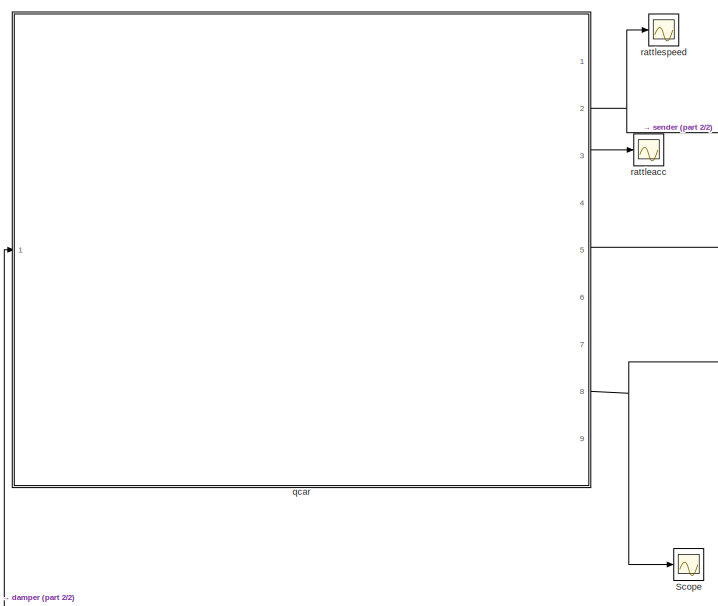
[diagram: root canvas - part 1/2, middle left region]
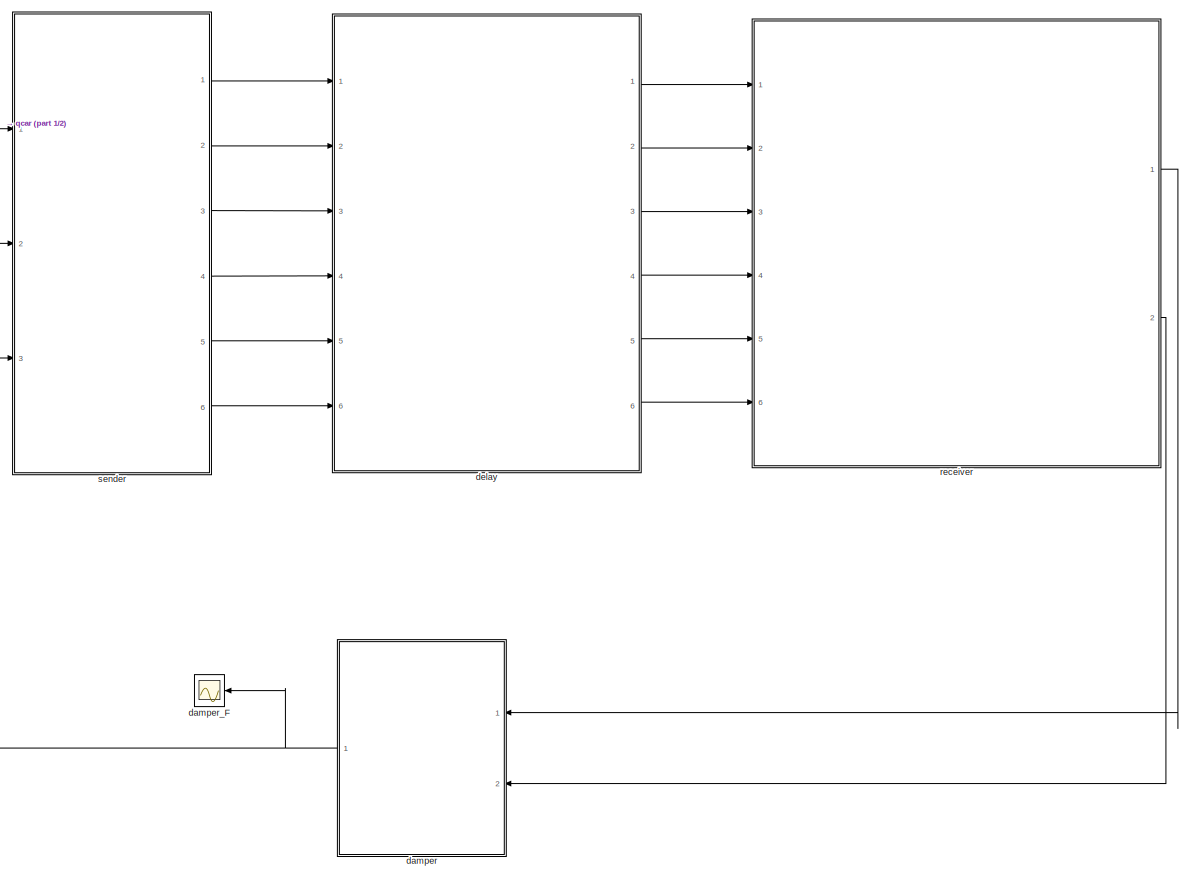
[diagram: root canvas - part 2/2, right side, full height]
MODEL slx_cd49c1555782
KIND model
CONFIG AbsTol = auto
CONFIG EnableMultiTasking = off
CONFIG FixedStep = 0.001
CONFIG MaxStep = auto
CONFIG MinStep = auto
CONFIG RelTol = 1e-3
CONFIG SampleTimeConstraint = Unconstrained
CONFIG SolverName = ode1
CONFIG StartTime = 0.0
CONFIG StopTime = 10.0
BLOCK [Scope] Scope
  Floating = off
  NumInputPorts = 1
  Ports = [1]
  ScopeSpecificationString = Simulink.scopes.TimeScopeBlockCfg('CurrentConfiguration', extmgr.ConfigurationSet(extmgr.Configuration('Core','General UI',true),extmgr.Configuration('Core','Source UI',true),extmgr.Configuration('Sources','WiredSimulink',true,'DataLoggingVariableName','ScopeData1'),extmgr.Configuration('Visuals','Time Domain',true,'SerializedDisplays',{struct('MinYLimReal','-0.0625','MaxYLimReal','0.5625','YLabel...<+1615ch>
BLOCK [ModelReference] damper
  ModelNameDialog = Damper.slx
  ModelReferenceVersion = 11.2
  NameLocation = top
  Ports = [2, 1]
BLOCK [Scope] damper_F
  Floating = off
  NameLocation = top
  NumInputPorts = 1
  Ports = [1]
  ScopeSpecificationString = Simulink.scopes.TimeScopeBlockCfg('CurrentConfiguration', extmgr.ConfigurationSet(extmgr.Configuration('Core','General UI',true),extmgr.Configuration('Core','Source UI',true),extmgr.Configuration('Sources','WiredSimulink',true),extmgr.Configuration('Visuals','Time Domain',true,'SerializedDisplays',{struct('MinYLimReal','-1011.89163','MaxYLimReal','1104.33144','YLabelReal','','MinYLimMag','  0.0000...<+1377ch>
BLOCK [ModelReference] delay
  ModelNameDialog = Delay.slx
  ModelReferenceVersion = 11.4
  Ports = [6, 6]
BLOCK [ModelReference] qcar
  ModelNameDialog = QuarterCar.slx
  ModelReferenceVersion = 11.7
  Ports = [1, 9]
BLOCK [Scope] rattleacc
  Floating = off
  NumInputPorts = 1
  Ports = [1]
  ScopeSpecificationString = Simulink.scopes.TimeScopeBlockCfg('CurrentConfiguration', extmgr.ConfigurationSet(extmgr.Configuration('Core','General UI',true),extmgr.Configuration('Core','Source UI',true),extmgr.Configuration('Sources','WiredSimulink',true,'DataLoggingVariableName','ScopeData1'),extmgr.Configuration('Visuals','Time Domain',true,'SerializedDisplays',{struct('MinYLimReal','-1.00000','MaxYLimReal','1.00000','YLab...<+1411ch>
BLOCK [Scope] rattlespeed
  Floating = off
  NumInputPorts = 1
  Ports = [1]
  ScopeSpecificationString = Simulink.scopes.TimeScopeBlockCfg('CurrentConfiguration', extmgr.ConfigurationSet(extmgr.Configuration('Core','General UI',true),extmgr.Configuration('Core','Source UI',true),extmgr.Configuration('Sources','WiredSimulink',true,'DataLoggingVariableName','ScopeData2'),extmgr.Configuration('Visuals','Time Domain',true,'SerializedDisplays',{struct('MinYLimReal','-0.55168','MaxYLimReal','0.50548','YLab...<+1409ch>
BLOCK [ModelReference] receiver
  ModelNameDialog = Receiver.slx
  ModelReferenceVersion = 11.2
  Ports = [6, 2]
BLOCK [ModelReference] sender
  ModelNameDialog = Sender.slx
  ModelReferenceVersion = 11.4
  Ports = [3, 6]
NET damper:1 -> damper_F:1, qcar:1
LINE delay:1 -> receiver:1
LINE delay:2 -> receiver:2
LINE delay:3 -> receiver:3
LINE delay:4 -> receiver:4
LINE delay:5 -> receiver:5
LINE delay:6 -> receiver:6
NET qcar:2 -> rattlespeed:1, sender:1
LINE qcar:3 -> rattleacc:1
LINE qcar:5 -> sender:2
NET qcar:8 -> Scope:1, sender:3
LINE receiver:1 -> damper:1
LINE receiver:2 -> damper:2
LINE sender:1 -> delay:1
LINE sender:2 -> delay:2
LINE sender:3 -> delay:3
LINE sender:4 -> delay:4
LINE sender:5 -> delay:5
LINE sender:6 -> delay:6
note: NET lines group one-source signal fan-out (src -> all destinations, sorted); 1:1 wires keep LINE
